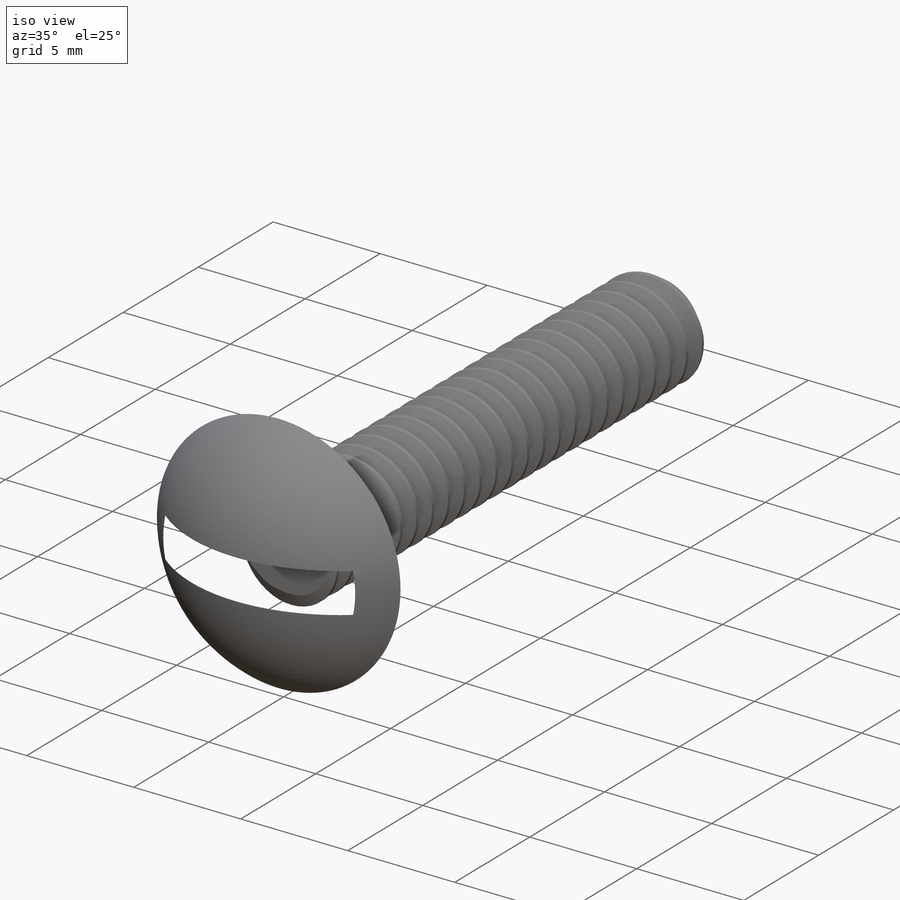
[diagram: iso view]
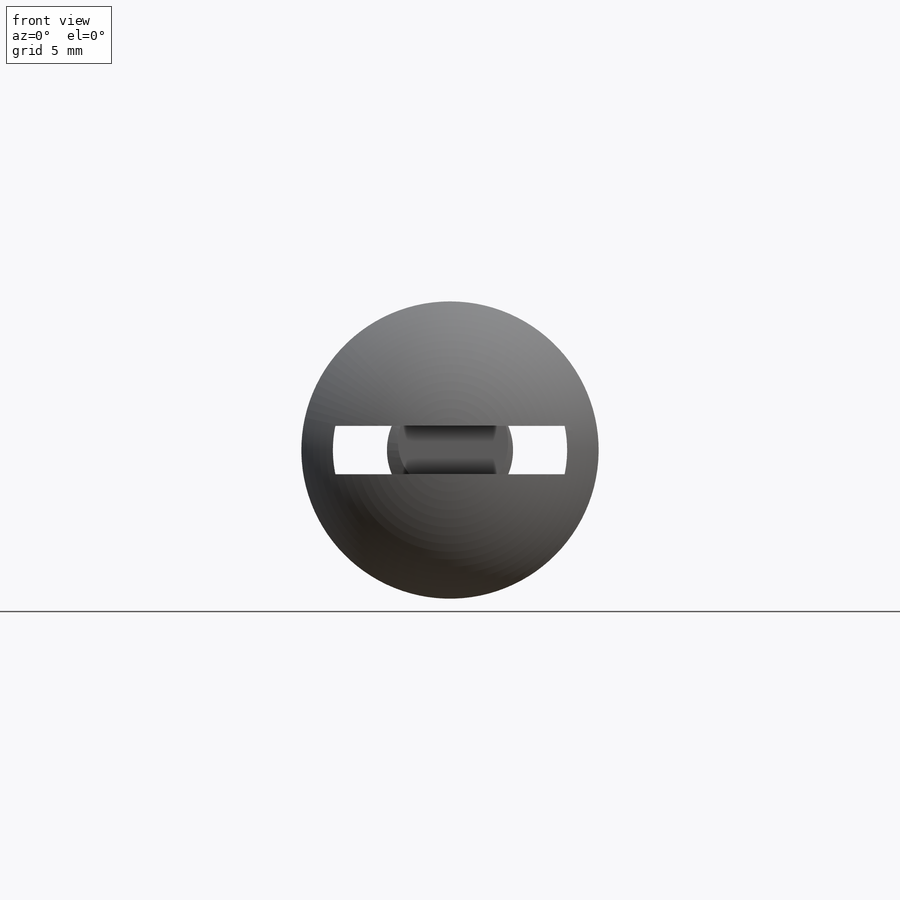
[diagram: front view]
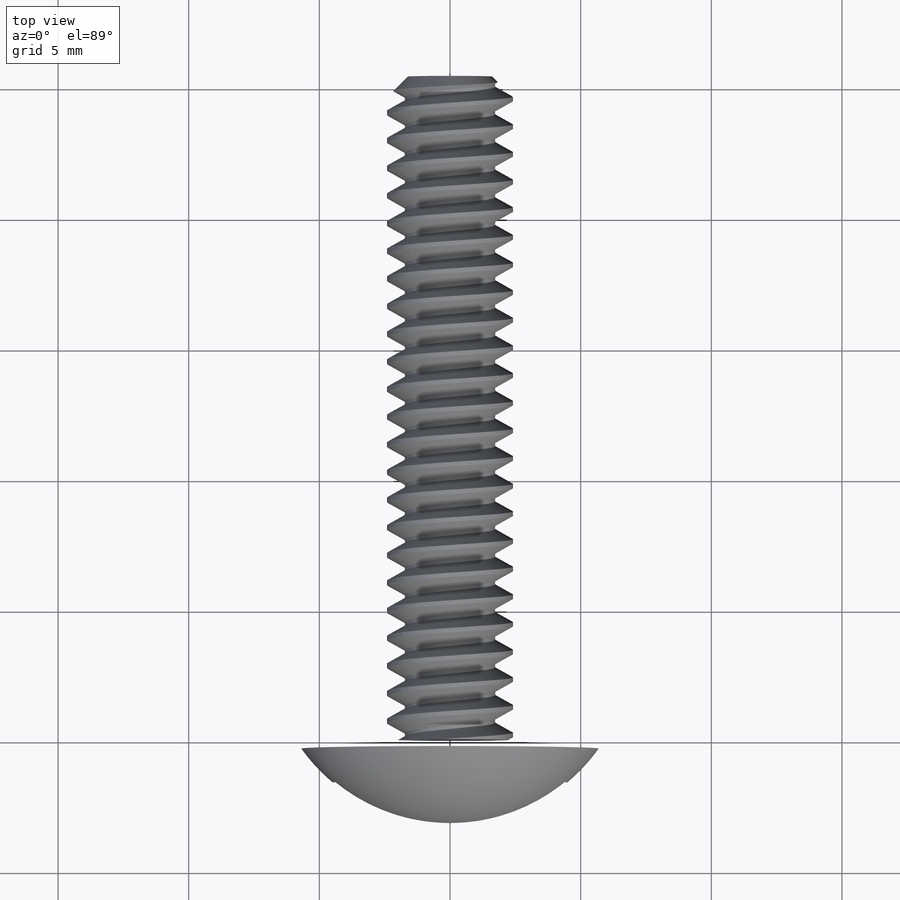
[diagram: top view]
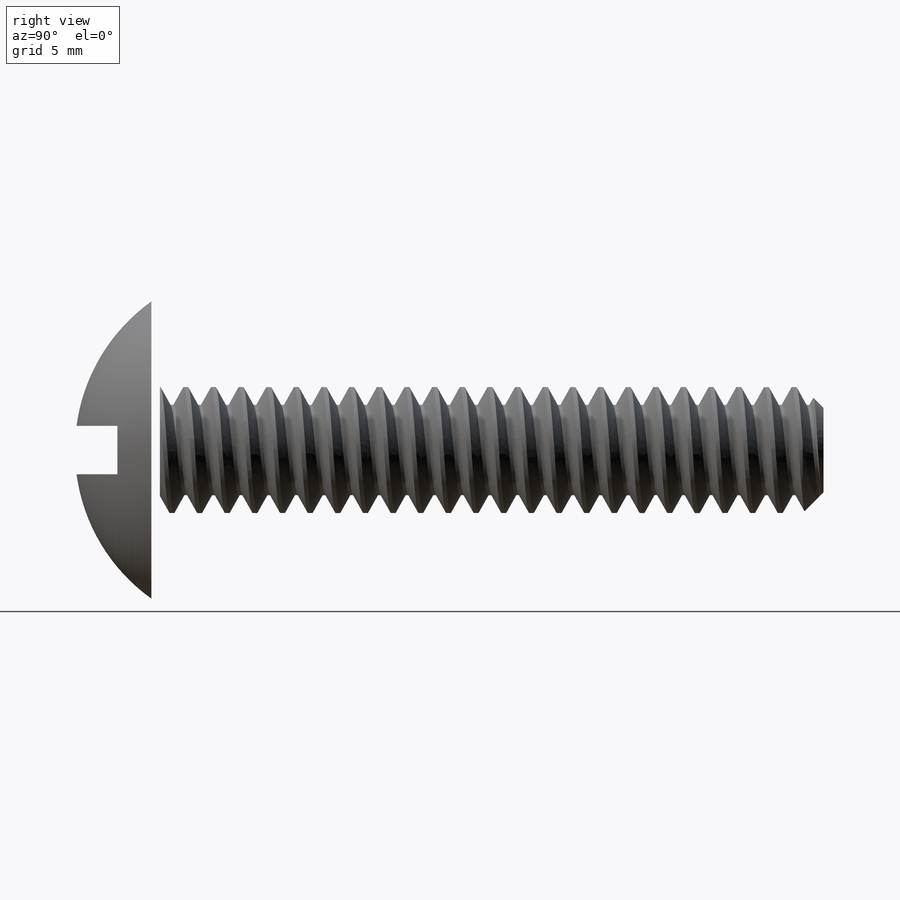
[diagram: right view]
SOLIDWORKS PART (.sldprt)
format: sldprt  version: not decoded by parser v0  size: 1,211,904 bytes
history: native  units: mm
features: sketch x9, extrude x3, plane x2, material x1, cut_revolve x1, revolve x1, helix x1, chamfer x1, sweep x1, cut_extrude x1 (+14 scaffold rows collapsed; 1 parser-record rows omitted)
feature tree (36):
  scaffold x14  (default folders/planes/origin — collapsed)
  material  "Material <not specified>"
  sketch  "Sketch1"  dims[Washer OD=8.3312mm Head Dia=11.3792mm Hex=6.35mm]
  extrude  "Extrude3"  Depth=3.2512mm Head Ht=3.2512mm
  sketch  "Sketch11"  dims[c1.D2=~0.22225mm c1.D4=0.4445mm c1.D1=0.254mm c2.D2=~1.642533mm c2.D3=~1.947333mm c3.D2=~1.66218mm c4.D2=5.0deg c4.D1=~3.294374mm c5.D1=82.0deg c5.D2=0.254mm c5.D3=0.254mm c5.dia=2.1844mm c6.D1=~0.32512mm c6.D5=~1.13792mm]
  cut_revolve  "Cut-Revolve3"  Angle=360deg
  sketch  "Sketch4"  dims[c1.Screw Dia=9.525mm c1.Screw Length=12.7mm c1.Drill Length=~7.14375mm c1.D1=~1.417672mm c2.D1=45.0deg c2.Body Length=44.958mm c2.Screw Length=12.7mm c3.Screw Length=25.4mm c3.D1=90.0deg c4.Screw Length=50.8mm c4.Length=~39.600133mm c4.dia=7.9248mm c4.length=50.8mm c5.length=6.35mm c6.length=76.2mm c7.length=25.4mm c7.dia=4.826mm]
  revolve  "Revolve1"  Angle=360deg
  sketch  "Sketch13"  dims[D1=0.0mm]
  helix  "Helix/Spiral1"  Pitch=28.6512mm
  chamfer  "Chamfer2"  Distance=0.79375mm Angle=45deg
  sketch  "Sketch14"  dims[c1.D1=~0.132292mm c1.D2=~2.089547mm c2.D2=58.0deg c2.D3=~0.529167mm c2.D4=~0.033073mm]
  sweep  "Cut-Sweep1"
  plane  "Plane1"  Offset=38.1mm
  parser-record x1  (decoder bookkeeping rows leaked as tree rows — omitted from the tree; the rows remain in map.json)
  sketch  "Sketch29"
  extrude  "Extrude11"  [1 undecoded]
  plane  "Plane2"
  sketch  "Sketch26"  dims[D1=1.0922mm]
  extrude  "Extrude13"  [1 undecoded]
  sketch  "Sketch31"  dims[c1.slot dia=6.985mm c1.D1=45.0deg c1.D2=22.5deg c1.slot width=1.524mm c1.D4=6.985mm c2.D1=~1.852083mm]
  cut_extrude  "Extrude15"  Depth=1.6256mm
  sketch  "Sketch18"  dims[D1=~1.058333mm D2=1.5875mm]
decode coverage: 14 of 18 modeling features carry decoded parameters
note: ~ marks probable driven/reference dimensions
note: 2 parameter values undecoded
note: suppression state not decoded; provenance and decode notes live in map.json
